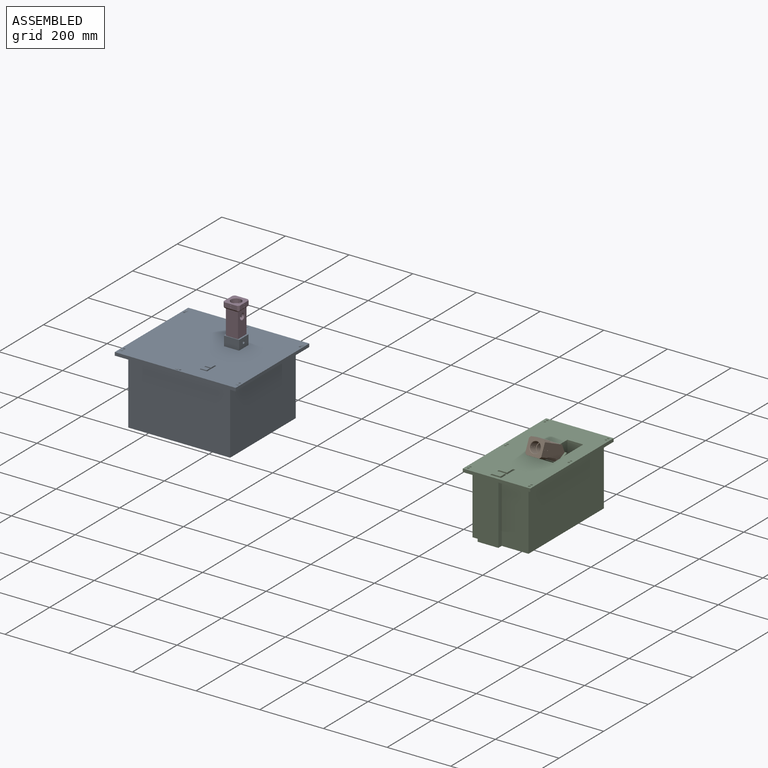
[diagram: assembled view]
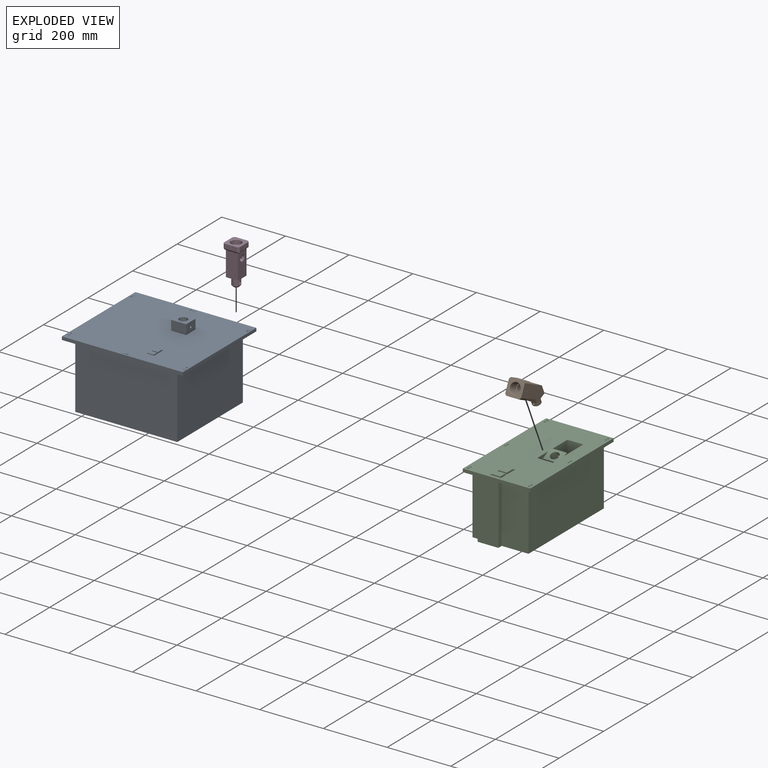
[diagram: exploded view]
GUIDED TOUR — MATED ASSEMBLY (Onshape document d1e8308d5dc208790177424f, AutoMate assembly d1e8308d5dc208790177424f_262afded9ebe59061bbb326d_f564121bc8687f628b500fed_default)

This assembly has 4 components, labeled P0..P3 below (a component is one placed occurrence of a part; the same part can appear more than once), held together by 2 mates. A mate is a constraint between two components; its type names the relative motion it leaves free:
  FASTENED — locks the two components together rigidly (no relative motion).
Axis/direction vectors are unit vectors and 'through' points are millimeter coordinates, both in the assembly's world frame.

MATES
  1. FASTENED "Fastened 2": P3 <-> P0, direction (0.000, 0.000, -1.000) through (-55.70, -83.54, 76.76) mm
  2. FASTENED "Fastened 1": P1 <-> P2, direction (0.000, 0.407, -0.914) through (798.81, 124.88, -117.22) mm

ASSEMBLY ORDER
  1. P2 — the base component [order verified]
  2. P1 [order verified]
  3. P0 [order verified]
  4. P3 [order verified]
(P1, P3 verified with a relaxed clearance tolerance: the source model stores slight part interference there.)
Order-tag legend:
  [order verified] — this step's position reverses a verified removal order: the component was checked to insert without passing through the ones already placed.

Of the 4 components, 2 carry the full construction recipe — the FeatureScript program that regenerates the part's solid from scratch; the rest are supplied as boundary geometry only.
Each toured component is shown spotlighted twice — in the assembled view, then in the exploded view, where a leader line traces a displaced component back to its assembled socket (saturated green if recipe-attached, orange if geometry-only; every other component desaturated gray) — followed by its recipe or geometry summary and the mates that hold it.
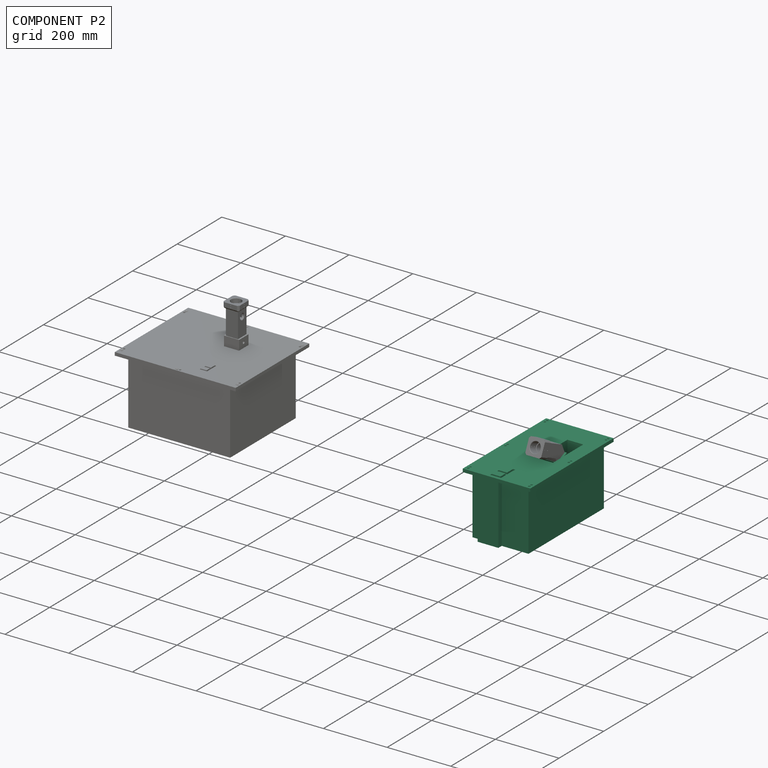
[diagram: component P2 — assembled]
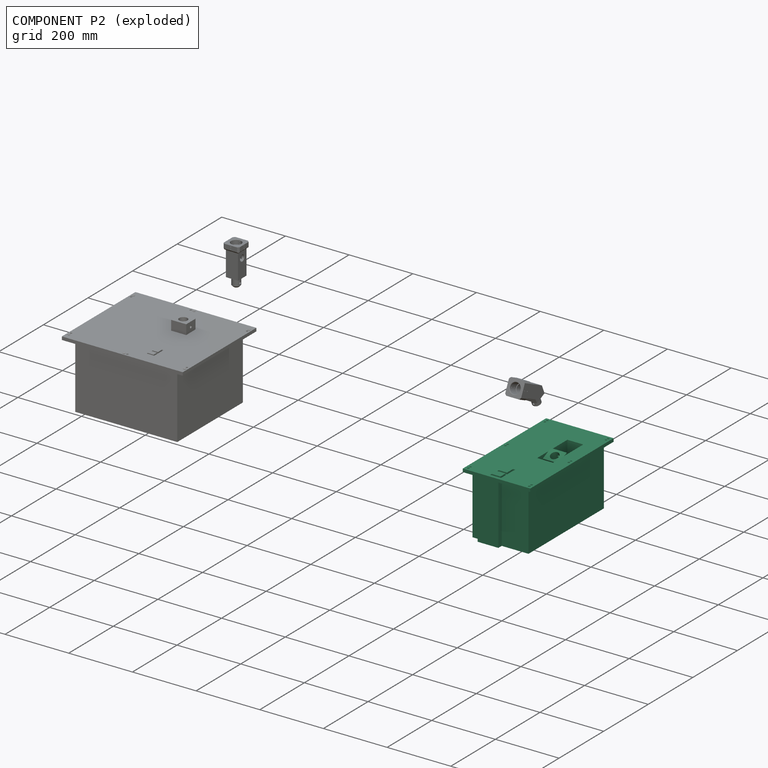
[diagram: component P2 — exploded]
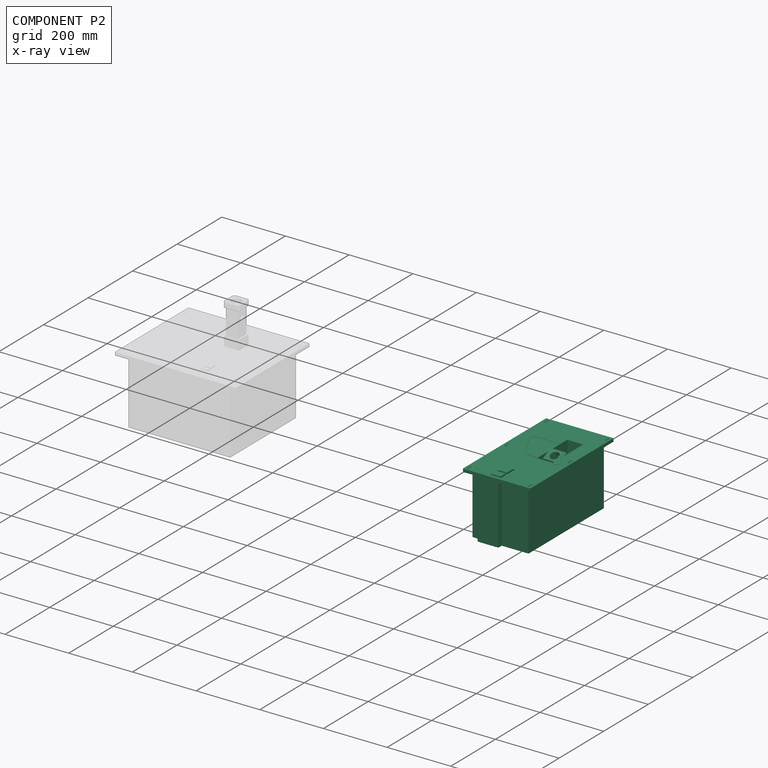
[diagram: component P2 — x-ray view]
COMPONENT P2 — recipe-attached (CADFS 00451113, mesh-verified: the recipe's output STEP matches this component's geometry to below the mesh-comparison resolution (tessellation chordal tolerance ~0.712 mm)).
Held by: FASTENED mate "Fastened 1" to P1.
Construction recipe (FeatureScript — the CAD program that rebuilds this solid; sketch coordinates are in the units given by the * unit suffixes, e.g. mm):

FeatureScript 1803;
import(path : "onshape/std/geometry.fs", version : "1803.0");
import(path : "onshape/std/common.fs", version : "1803.0");
const mm = millimeter;
const VERTEX = EntityType.VERTEX;
const EDGE = EntityType.EDGE;
const FACE = EntityType.FACE;
const BODY = EntityType.BODY;
function v(x, y){return vector(x, y);}
function OD(order){return orderDisambiguation(order);}
function OSD(set){return originalSetDisambiguation(set);}
function TD(topology){return topologyDisambiguation(topology);}
function TDD(query){return trueDependencyDisambiguation(query);}
function sQuery(a, b, c) {return sketchEntityQuery(a, b, c);}

annotation { "Feature Type Name" : "Feature", "Feature Type Description" : "" }
export const myFeature = defineFeature(function(context is Context, id is Id, definition is map)
    precondition{}
    {
        {
            var Q0;
            Q0=qCreatedBy(makeId("Top.planeOp"),FACE);
            var sketch = newSketch(context, id + "F0", { "sketchPlane" : qUnion([Q0])});
            skLineSegment(sketch, "E0.bottom", {"start": v(187, -106) * mm, "end": v(-187, -106) * mm});
            skLineSegment(sketch, "E0.top", {"start": v(187, 106) * mm, "end": v(-187, 106) * mm});
            skLineSegment(sketch, "E0.left", {"start": v(187, -106) * mm, "end": v(187, 106) * mm});
            skLineSegment(sketch, "E0.right", {"start": v(-187, -106) * mm, "end": v(-187, 106) * mm});
            skPoint(sketch, "E0.middle", {"position": v(0, 0) * mm});
            skSolve(sketch);
        }
        {
            var Q0;
            Q0=qSketchRegion(id+"F0",true);
            extrude(context, id + "F1", {"entities" : qUnion([Q0]), "depth" : 10 * mm});
        }
        {
            var Q0;
            Q0=makeQuery(id+"F1.opExtrude","CAP_FACE",FACE,{"disambiguationData":[OSD([sQuery(id+"F0.wireOp",EDGE,"E0.bottom"),sQuery(id+"F0.wireOp",EDGE,"E0.top"),sQuery(id+"F0.wireOp",EDGE,"E0.left"),sQuery(id+"F0.wireOp",EDGE,"E0.right")])],"isStart":true});
            var sketch = newSketch(context, id + "F2", { "sketchPlane" : qUnion([Q0])});
            skLineSegment(sketch, "E1.bottom", {"start": v(169, -88) * mm, "end": v(-169, -88) * mm});
            skLineSegment(sketch, "E1.top", {"start": v(169, 88) * mm, "end": v(-169, 88) * mm});
            skLineSegment(sketch, "E1.left", {"start": v(169, -88) * mm, "end": v(169, 88) * mm});
            skLineSegment(sketch, "E1.right", {"start": v(-169, -88) * mm, "end": v(-169, 88) * mm});
            skPoint(sketch, "E1.middle", {"position": v(0, 0) * mm});
            skLineSegment(sketch, "E2", {"start": v(-169, -61.3) * mm, "end": v(-184, -61.3) * mm});
            skLineSegment(sketch, "E3", {"start": v(-184, -61.3) * mm, "end": v(-184, 3.7) * mm});
            skLineSegment(sketch, "E4", {"start": v(-184, 3.7) * mm, "end": v(-169, 3.7) * mm});
            skSolve(sketch);
        }
        {
            var Q0;
            Q0=qSketchRegion(id+"F2",true);
            extrude(context, id + "F3", {"entities" : qUnion([Q0]), "operationType" : NewBodyOperationType.ADD, "depth" : 187 * mm});
        }
        {
            var Q0;
            Q0=makeQuery(id+"F1.opExtrude","CAP_FACE",FACE,{"disambiguationData":[OSD([sQuery(id+"F0.wireOp",EDGE,"E0.bottom"),sQuery(id+"F0.wireOp",EDGE,"E0.top"),sQuery(id+"F0.wireOp",EDGE,"E0.left"),sQuery(id+"F0.wireOp",EDGE,"E0.right")])],"isStart":false});
            var sketch = newSketch(context, id + "F4", { "sketchPlane" : qUnion([Q0])});
            skLineSegment(sketch, "E5.bottom", {"start": v(110.87, -63.9) * mm, "end": v(-24.87, -63.9) * mm});
            skLineSegment(sketch, "E5.top", {"start": v(110.87, -13.9) * mm, "end": v(-24.87, -13.9) * mm});
            skLineSegment(sketch, "E5.left", {"start": v(110.87, -63.9) * mm, "end": v(110.87, -13.9) * mm});
            skLineSegment(sketch, "E5.right", {"start": v(-24.87, -63.9) * mm, "end": v(-24.87, -13.9) * mm});
            skPoint(sketch, "E5.middle", {"position": v(43, -38.9) * mm});
            skSolve(sketch);
        }
        {
            var Q0;
            Q0=qSketchRegion(id+"F4",true);
            extrude(context, id + "F5", {"entities" : qUnion([Q0]), "operationType" : NewBodyOperationType.REMOVE, "oppositeDirection" : true, "depth" : 50 * mm});
        }
        {
            var Q0;
            {var subQ0=sQuery(id+"F0.wireOp",EDGE,"E0.left");var subQ1=sQuery(id+"F0.wireOp",EDGE,"E0.top");var subQ2=sQuery(id+"F0.wireOp",EDGE,"E0.right");var subQ3=sQuery(id+"F0.wireOp",EDGE,"E0.bottom");Q0=makeQuery(id+"F5.boolean.opBoolean","SPLIT",FACE,{"disambiguationData":[TD([makeQuery(id+"F1.opExtrude","SWEPT_FACE",FACE,{"disambiguationData":[OSD([subQ3])]})])],"derivedFrom":makeQuery(id+"F1.opExtrude","CAP_FACE",FACE,{"disambiguationData":[OSD([subQ3,subQ1,subQ0,subQ2])],"isStart":false})});}
            var sketch = newSketch(context, id + "F6", { "sketchPlane" : qUnion([Q0])});
            skPoint(sketch, "E6", {"position": v(-177, 96) * mm});
            skPoint(sketch, "E7", {"position": v(-167, 96) * mm});
            skPoint(sketch, "E8", {"position": v(-10, 96) * mm});
            skPoint(sketch, "E9", {"position": v(0, 96) * mm});
            skPoint(sketch, "E10", {"position": v(167, 96) * mm});
            skPoint(sketch, "E11", {"position": v(177, 96) * mm});
            skPoint(sketch, "E12.MirrorP", {"position": v(177, -96) * mm});
            skPoint(sketch, "E13.MirrorP", {"position": v(167, -96) * mm});
            skPoint(sketch, "E14.MirrorP", {"position": v(-167, -96) * mm});
            skPoint(sketch, "E15.MirrorP", {"position": v(-177, -96) * mm});
            skPoint(sketch, "E16", {"position": v(0, -96) * mm});
            skPoint(sketch, "E17", {"position": v(10, -96) * mm});
            skSolve(sketch);
        }
        {
            var Q0;
            Q0=sQuery(id+"F6.wireOp",VERTEX,"E7");
            var Q1;
            Q1=sQuery(id+"F6.wireOp",VERTEX,"E14.MirrorP");
            var Q2;
            Q2=sQuery(id+"F6.wireOp",VERTEX,"E13.MirrorP");
            var Q3;
            Q3=sQuery(id+"F6.wireOp",VERTEX,"E10");
            var Q4;
            Q4=sQuery(id+"F6.wireOp",VERTEX,"E8");
            var Q5;
            Q5=sQuery(id+"F6.wireOp",VERTEX,"E17");
            var Q6;
            Q6=makeQuery(id+"F1.opExtrude","SWEPT_BODY",BODY,{"disambiguationData":[OSD([sQuery(id+"F0.wireOp",EDGE,"E0.bottom"),sQuery(id+"F0.wireOp",EDGE,"E0.top"),sQuery(id+"F0.wireOp",EDGE,"E0.left"),sQuery(id+"F0.wireOp",EDGE,"E0.right")])]});
            hole(context, id + "F7", {"style" : HoleStyle.SIMPLE, "endStyle" : HoleEndStyle.BLIND, "holeDiameter" : 6 * mm, "holeDepth" : 10 * mm, "tappedDepth" : 12 * mm, "tapClearance" : 3, "locations" : qUnion([Q0, Q1, Q2, Q3, Q4, Q5]), "scope" : qUnion([Q6])});
        }
        {
            var Q0;
            Q0=sQuery(id+"F6.wireOp",VERTEX,"E6");
            var Q1;
            Q1=sQuery(id+"F6.wireOp",VERTEX,"E15.MirrorP");
            var Q2;
            Q2=sQuery(id+"F6.wireOp",VERTEX,"E16");
            var Q3;
            Q3=sQuery(id+"F6.wireOp",VERTEX,"E9");
            var Q4;
            Q4=sQuery(id+"F6.wireOp",VERTEX,"E11");
            var Q5;
            Q5=sQuery(id+"F6.wireOp",VERTEX,"E12.MirrorP");
            var Q6;
            Q6=makeQuery(id+"F1.opExtrude","SWEPT_BODY",BODY,{"disambiguationData":[OSD([sQuery(id+"F0.wireOp",EDGE,"E0.bottom"),sQuery(id+"F0.wireOp",EDGE,"E0.top"),sQuery(id+"F0.wireOp",EDGE,"E0.left"),sQuery(id+"F0.wireOp",EDGE,"E0.right")])]});
            hole(context, id + "F8", {"style" : HoleStyle.SIMPLE, "endStyle" : HoleEndStyle.BLIND, "holeDiameter" : 6.5 * mm, "holeDepth" : 10 * mm, "tappedDepth" : 12 * mm, "tapClearance" : 3, "locations" : qUnion([Q0, Q1, Q2, Q3, Q4, Q5]), "scope" : qUnion([Q6])});
        }
        {
            var Q0;
            Q0=makeQuery(id+"F6.imprint","IMPRINT",FACE,{"disambiguationData":[TD([[makeQuery(id+"F6.imprint","IMPRINT",EDGE,{"derivedFrom":makeQuery(id+"F1.opExtrude","CAP_EDGE",EDGE,{"disambiguationData":[OSD([sQuery(id+"F0.wireOp",EDGE,"E0.bottom")])],"isStart":false})}),-1.0]])]});
            var sketch = newSketch(context, id + "F9", { "sketchPlane" : qUnion([Q0])});
            skText(sketch, "E18", { "text": "F", "fontName": "OpenSans-Regular.ttf"});
            const initialGuessF9  = {"E18": [-0.11521, -0.01712, 0, 1, 0.06278]};
            skSetInitialGuess(sketch, initialGuessF9);
            skSolve(sketch);
        }
        {
            var Q0;
            Q0 = qSketchRegion(id + "F9", true);
            extrude(context, id + "F10", {"entities" : qUnion([Q0]), "operationType" : NewBodyOperationType.REMOVE, "oppositeDirection" : true, "depth" : 5 * mm, "offsetDistance" : 25 * mm});
        }
        {
            var Q0;
            Q0=makeQuery(id+"F5.boolean.opBoolean","COPY",FACE,{"derivedFrom":makeQuery(id+"F5.opExtrude","SWEPT_FACE",FACE,{"disambiguationData":[OSD([sQuery(id+"F4.wireOp",EDGE,"E5.top")])]})});
            cPlane(context, id + "F11", {"entities" : qUnion([Q0]), "cplaneType" : CPlaneType.OFFSET, "offset" : 25 * mm, "width" : 150 * mm, "height" : 150 * mm});
        }
        {
            var Q0;
            Q0=qCreatedBy(id+"F11.planeOp",FACE);
            var sketch = newSketch(context, id + "F12", { "sketchPlane" : qUnion([Q0])});
            skLineSegment(sketch, "E19", {"start": v(36.87, 14.95) * mm, "end": v(61.27, -39.87) * mm});
            skLineSegment(sketch, "E20", {"start": v(61.27, -39.87) * mm, "end": v(24.73, -56.13) * mm});
            skLineSegment(sketch, "E21", {"start": v(24.73, -56.13) * mm, "end": v(0.32, -1.32) * mm});
            skLineSegment(sketch, "E22", {"start": v(0.32, -1.32) * mm, "end": v(36.87, 14.95) * mm});
            skPoint(sketch, "E23", {"position": v(43, -48) * mm});
            skLineSegment(sketch, "E24", {"start": v(43, -48) * mm, "end": v(43, 95.44) * mm, "construction": true});
            skSolve(sketch);
        }
        {
            var Q0;
            Q0 = qSketchRegion(id + "F12", true);
            extrude(context, id + "F13", {"entities" : qUnion([Q0]), "operationType" : NewBodyOperationType.ADD, "depth" : 50 * mm, "offsetDistance" : 25 * mm, "symmetric" : true});
        }
        {
            var Q0;
            Q0=makeQuery(id+"F13.opExtrude","SWEPT_FACE",FACE,{"disambiguationData":[OSD([sQuery(id+"F12.wireOp",EDGE,"E22")])]});
            var sketch = newSketch(context, id + "F14", { "sketchPlane" : qUnion([Q0])});
            skCircle(sketch, "E25", {"center": v(19.76, -38.9) * mm, "radius": 13 * mm});
            skSolve(sketch);
        }
        {
            var Q0;
            Q0 = qSketchRegion(id + "F14", true);
            extrude(context, id + "F15", {"entities" : qUnion([Q0]), "operationType" : NewBodyOperationType.REMOVE, "oppositeDirection" : true, "depth" : 33 * mm, "offsetDistance" : 25 * mm});
        }
        {
            var Q0;
            Q0=makeQuery(id+"F13.opExtrude","SWEPT_FACE",FACE,{"disambiguationData":[OSD([sQuery(id+"F12.wireOp",EDGE,"E19")])]});
            var sketch = newSketch(context, id + "F16", { "sketchPlane" : qUnion([Q0])});
            skCircle(sketch, "E26", {"center": v(-38.9, -16.34) * mm, "radius": 4.1 * mm});
            skSolve(sketch);
        }
        {
            var Q0;
            Q0 = qSketchRegion(id + "F16", true);
            extrude(context, id + "F17", {"entities" : qUnion([Q0]), "operationType" : NewBodyOperationType.REMOVE, "oppositeDirection" : true, "depth" : 47 * mm, "offsetDistance" : 25 * mm});
        }
    });
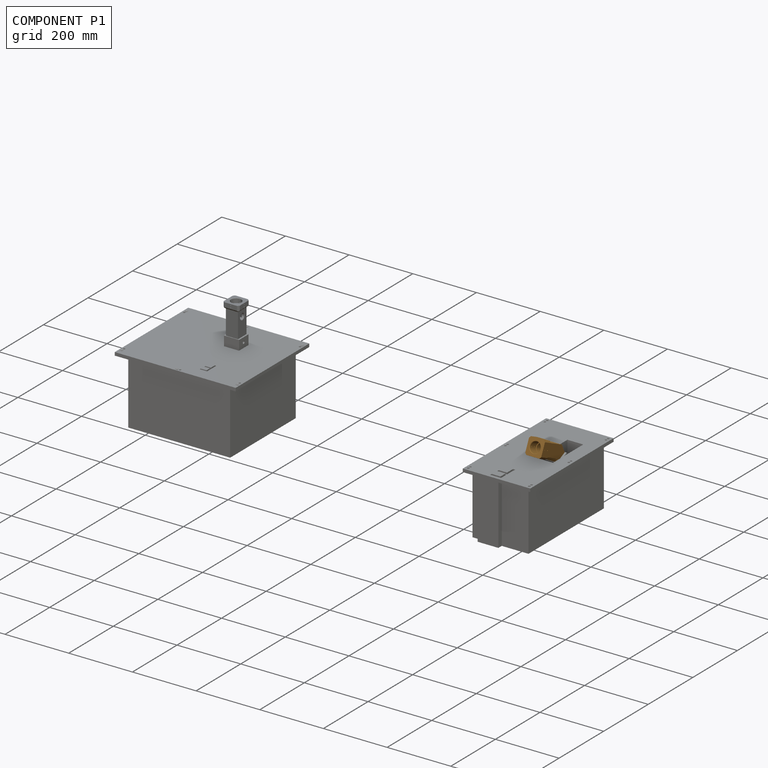
[diagram: component P1 — assembled]
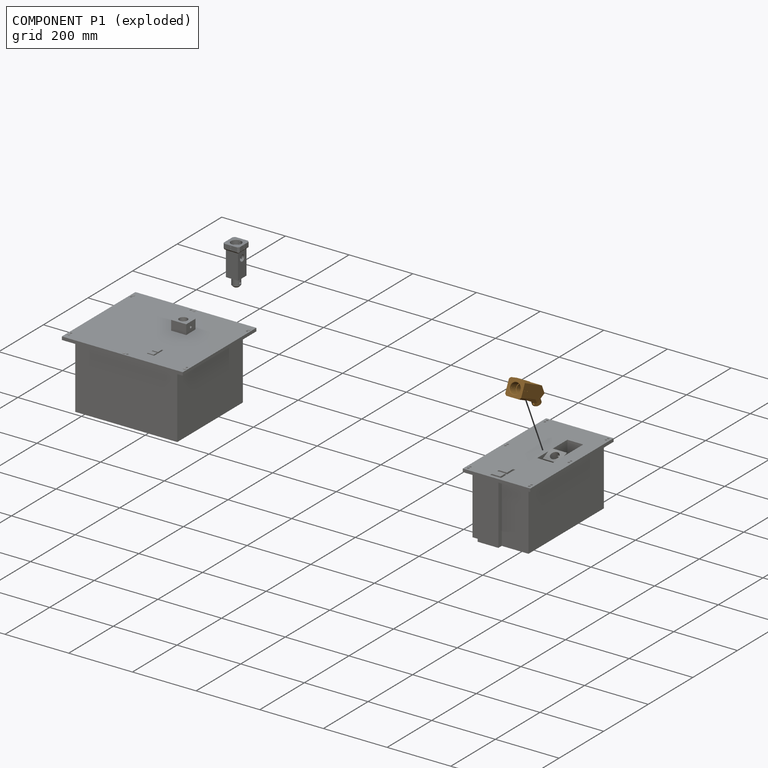
[diagram: component P1 — exploded]
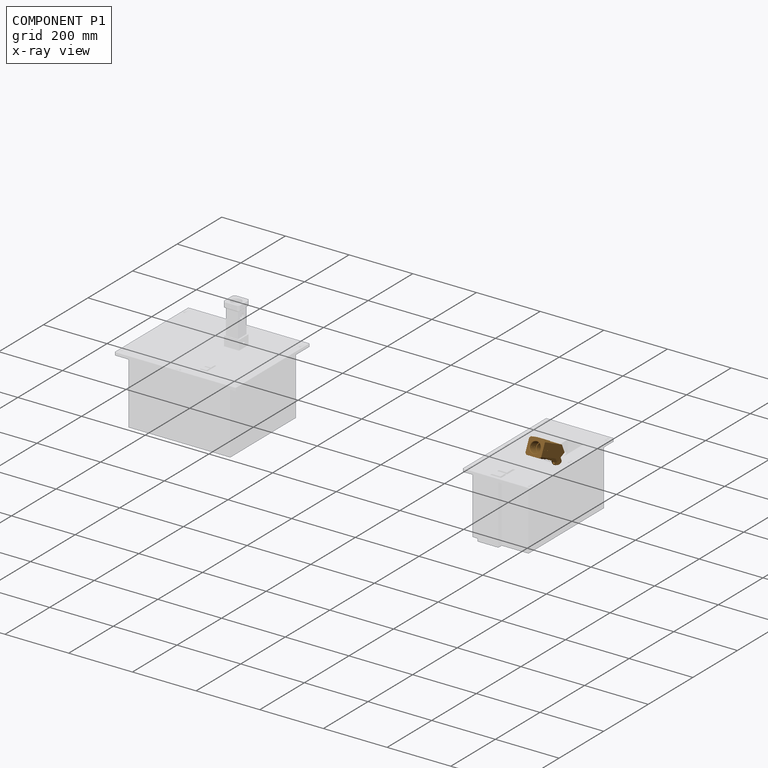
[diagram: component P1 — x-ray view]
COMPONENT P1 — geometry summary (no construction recipe available for this part):
  bounding box: 132.2 x 95.0 x 50.0 mm
  B-rep topology: 1 solid, 38 faces, 200 edges
  volume: 151509 mm^3 (24% of its bounding box)
  symmetry: mirror-symmetric across its x mid-plane
Held by: FASTENED mate "Fastened 1" to P2.
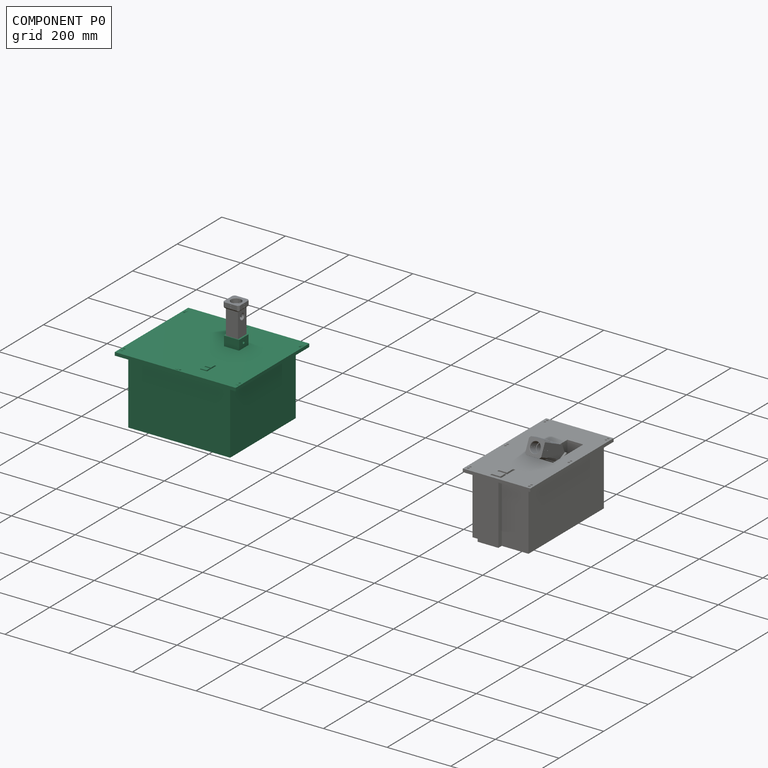
[diagram: component P0 — assembled]
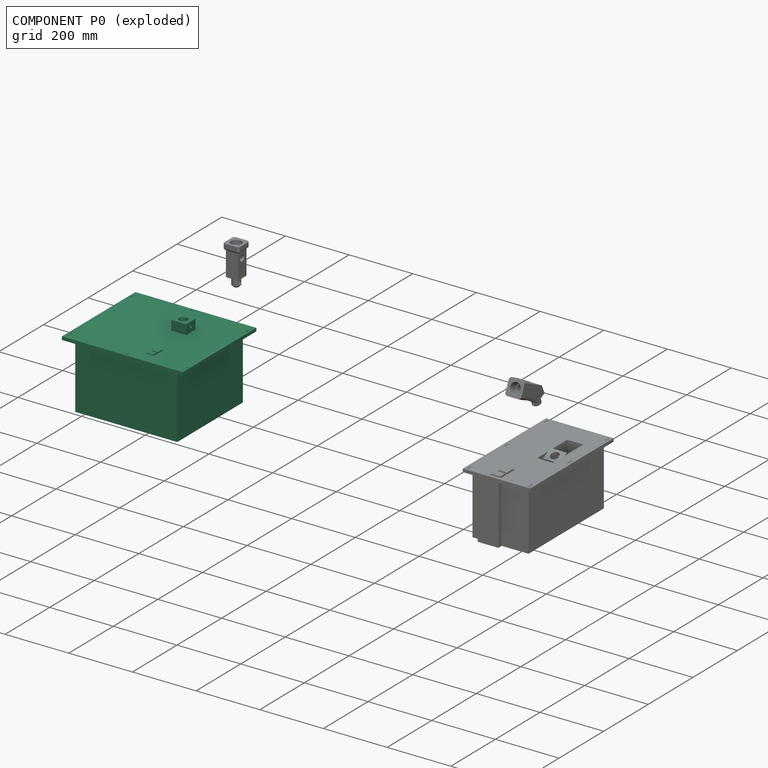
[diagram: component P0 — exploded]
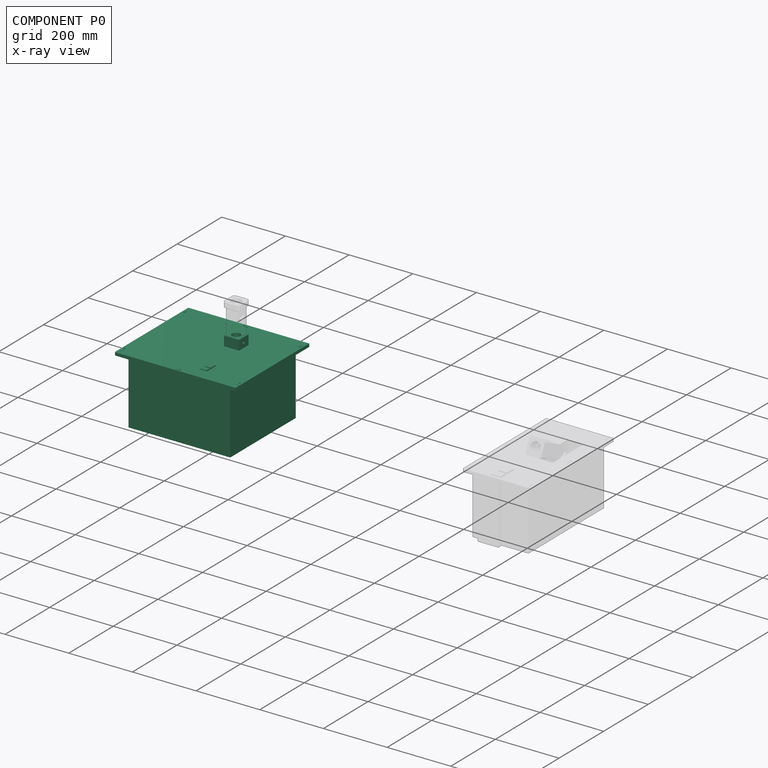
[diagram: component P0 — x-ray view]
COMPONENT P0 — recipe-attached (CADFS 00451111, mesh-verified: the recipe's output STEP matches this component's geometry to below the mesh-comparison resolution (tessellation chordal tolerance ~0.839 mm)).
Held by: FASTENED mate "Fastened 2" to P3.
Construction recipe (FeatureScript — the CAD program that rebuilds this solid; sketch coordinates are in the units given by the * unit suffixes, e.g. mm):

FeatureScript 1803;
import(path : "onshape/std/geometry.fs", version : "1803.0");
import(path : "onshape/std/common.fs", version : "1803.0");
const mm = millimeter;
const VERTEX = EntityType.VERTEX;
const EDGE = EntityType.EDGE;
const FACE = EntityType.FACE;
const BODY = EntityType.BODY;
function v(x, y){return vector(x, y);}
function OD(order){return orderDisambiguation(order);}
function OSD(set){return originalSetDisambiguation(set);}
function TD(topology){return topologyDisambiguation(topology);}
function TDD(query){return trueDependencyDisambiguation(query);}
function sQuery(a, b, c) {return sketchEntityQuery(a, b, c);}

annotation { "Feature Type Name" : "Feature", "Feature Type Description" : "" }
export const myFeature = defineFeature(function(context is Context, id is Id, definition is map)
    precondition{}
    {
        {
            var Q0;
            Q0=qCreatedBy(makeId("Top.planeOp"),FACE);
            var sketch = newSketch(context, id + "F0", { "sketchPlane" : qUnion([Q0])});
            skLineSegment(sketch, "E0.bottom", {"start": v(190, -165) * mm, "end": v(-190, -165) * mm});
            skLineSegment(sketch, "E0.top", {"start": v(190, 165) * mm, "end": v(-190, 165) * mm});
            skLineSegment(sketch, "E0.left", {"start": v(190, -165) * mm, "end": v(190, 165) * mm});
            skLineSegment(sketch, "E0.right", {"start": v(-190, -165) * mm, "end": v(-190, 165) * mm});
            skPoint(sketch, "E0.middle", {"position": v(0, 0) * mm});
            skSolve(sketch);
        }
        {
            var Q0;
            Q0 = qSketchRegion(id + "F0", true);
            extrude(context, id + "F1", {"entities" : qUnion([Q0]), "depth" : 10 * mm});
        }
        {
            var Q0;
            Q0=makeQuery(id+"F1.opExtrude","CAP_FACE",FACE,{"disambiguationData":[OSD([sQuery(id+"F0.wireOp",EDGE,"E0.bottom"),sQuery(id+"F0.wireOp",EDGE,"E0.top"),sQuery(id+"F0.wireOp",EDGE,"E0.left"),sQuery(id+"F0.wireOp",EDGE,"E0.right")])],"isStart":true});
            var sketch = newSketch(context, id + "F2", { "sketchPlane" : qUnion([Q0])});
            skLineSegment(sketch, "E1.bottom", {"start": v(160.15, -147.15) * mm, "end": v(-160.15, -147.15) * mm});
            skLineSegment(sketch, "E1.top", {"start": v(160.15, 147.15) * mm, "end": v(-160.15, 147.15) * mm});
            skLineSegment(sketch, "E1.left", {"start": v(160.15, -147.15) * mm, "end": v(160.15, 147.15) * mm});
            skLineSegment(sketch, "E1.right", {"start": v(-160.15, -147.15) * mm, "end": v(-160.15, 147.15) * mm});
            skPoint(sketch, "E1.middle", {"position": v(0, 0) * mm});
            skLineSegment(sketch, "E2", {"start": v(160.15, -113.65) * mm, "end": v(175.15, -113.65) * mm});
            skLineSegment(sketch, "E3", {"start": v(175.15, -113.65) * mm, "end": v(175.15, -48.65) * mm});
            skLineSegment(sketch, "E4", {"start": v(175.15, -48.65) * mm, "end": v(160.15, -48.65) * mm});
            skSolve(sketch);
        }
        {
            var Q0;
            Q0 = qSketchRegion(id + "F2", true);
            extrude(context, id + "F3", {"entities" : qUnion([Q0]), "operationType" : NewBodyOperationType.ADD, "depth" : 203 * mm});
        }
        {
            var Q0;
            {var subQ0=sQuery(id+"F0.wireOp",EDGE,"E0.left");var subQ1=sQuery(id+"F0.wireOp",EDGE,"E0.top");var subQ2=sQuery(id+"F0.wireOp",EDGE,"E0.right");var subQ3=sQuery(id+"F0.wireOp",EDGE,"E0.bottom");Q0=makeQuery(id+"F8.boolean.opBoolean","SPLIT",FACE,{"disambiguationData":[TD([makeQuery(id+"F1.opExtrude","SWEPT_FACE",FACE,{"disambiguationData":[OSD([subQ3])]})])],"derivedFrom":makeQuery(id+"F1.opExtrude","CAP_FACE",FACE,{"disambiguationData":[OSD([subQ3,subQ1,subQ0,subQ2])],"isStart":false})});}
            var sketch = newSketch(context, id + "F4", { "sketchPlane" : qUnion([Q0])});
            skPoint(sketch, "E5", {"position": v(0, 157) * mm});
            skPoint(sketch, "E6", {"position": v(0, -157) * mm});
            skPoint(sketch, "E7", {"position": v(-182, 145) * mm});
            skPoint(sketch, "E8", {"position": v(-182, -145) * mm});
            skPoint(sketch, "E9", {"position": v(-182, 135) * mm});
            skPoint(sketch, "E10", {"position": v(-182, -135) * mm});
            skPoint(sketch, "E11.MirrorP", {"position": v(182, 145) * mm});
            skPoint(sketch, "E12.MirrorP", {"position": v(182, -145) * mm});
            skPoint(sketch, "E13.MirrorP", {"position": v(182, 135) * mm});
            skPoint(sketch, "E14.MirrorP", {"position": v(182, -135) * mm});
            skPoint(sketch, "E15", {"position": v(-10, 157) * mm});
            skPoint(sketch, "E16", {"position": v(10, -157) * mm});
            skPoint(sketch, "E17.middle", {"position": v(0, 0) * mm});
            skPoint(sketch, "E18", {"position": v(-43.5, -46.5) * mm});
            skSolve(sketch);
        }
        {
            var Q0;
            Q0=sQuery(id+"F4.wireOp",VERTEX,"E9");
            var Q1;
            Q1=sQuery(id+"F4.wireOp",VERTEX,"E10");
            var Q2;
            Q2=sQuery(id+"F4.wireOp",VERTEX,"E13.MirrorP");
            var Q3;
            Q3=sQuery(id+"F4.wireOp",VERTEX,"E14.MirrorP");
            var Q4;
            Q4=sQuery(id+"F4.wireOp",VERTEX,"E16");
            var Q5;
            Q5=sQuery(id+"F4.wireOp",VERTEX,"E15");
            var Q6;
            Q6=makeQuery(id+"F1.opExtrude","SWEPT_BODY",BODY,{"disambiguationData":[OSD([sQuery(id+"F0.wireOp",EDGE,"E0.bottom"),sQuery(id+"F0.wireOp",EDGE,"E0.top"),sQuery(id+"F0.wireOp",EDGE,"E0.left"),sQuery(id+"F0.wireOp",EDGE,"E0.right")])]});
            hole(context, id + "F5", {"style" : HoleStyle.SIMPLE, "endStyle" : HoleEndStyle.BLIND, "holeDiameter" : 6 * mm, "holeDepth" : 10 * mm, "tappedDepth" : 12 * mm, "tapClearance" : 3, "locations" : qUnion([Q0, Q1, Q2, Q3, Q4, Q5]), "scope" : qUnion([Q6])});
        }
        {
            var Q0;
            Q0=sQuery(id+"F4.wireOp",VERTEX,"E7");
            var Q1;
            Q1=sQuery(id+"F4.wireOp",VERTEX,"E11.MirrorP");
            var Q2;
            Q2=sQuery(id+"F4.wireOp",VERTEX,"E8");
            var Q3;
            Q3=sQuery(id+"F4.wireOp",VERTEX,"E12.MirrorP");
            var Q4;
            Q4=sQuery(id+"F4.wireOp",VERTEX,"E6");
            var Q5;
            Q5=sQuery(id+"F4.wireOp",VERTEX,"E5");
            var Q6;
            Q6=makeQuery(id+"F1.opExtrude","SWEPT_BODY",BODY,{"disambiguationData":[OSD([sQuery(id+"F0.wireOp",EDGE,"E0.bottom"),sQuery(id+"F0.wireOp",EDGE,"E0.top"),sQuery(id+"F0.wireOp",EDGE,"E0.left"),sQuery(id+"F0.wireOp",EDGE,"E0.right")])]});
            hole(context, id + "F6", {"style" : HoleStyle.C_SINK, "endStyle" : HoleEndStyle.BLIND, "holeDiameter" : 5.5 * mm, "cSinkDiameter" : 10 * mm, "cSinkAngle" : 90 * degree, "holeDepth" : 10 * mm, "tappedDepth" : 12 * mm, "tapClearance" : 3, "locations" : qUnion([Q0, Q1, Q2, Q3, Q4, Q5]), "scope" : qUnion([Q6])});
        }
        {
            var Q0;
            Q0=makeQuery(id+"F1.opExtrude","CAP_FACE",FACE,{"disambiguationData":[OSD([sQuery(id+"F0.wireOp",EDGE,"E0.bottom"),sQuery(id+"F0.wireOp",EDGE,"E0.top"),sQuery(id+"F0.wireOp",EDGE,"E0.left"),sQuery(id+"F0.wireOp",EDGE,"E0.right")])],"isStart":false});
            var sketch = newSketch(context, id + "F7", { "sketchPlane" : qUnion([Q0])});
            skLineSegment(sketch, "E19.bottom", {"start": v(-19.75, -67.5) * mm, "end": v(-67.25, -67.5) * mm});
            skLineSegment(sketch, "E19.top", {"start": v(-19.75, -25.5) * mm, "end": v(-67.25, -25.5) * mm});
            skLineSegment(sketch, "E19.left", {"start": v(-19.75, -67.5) * mm, "end": v(-19.75, -25.5) * mm});
            skLineSegment(sketch, "E19.right", {"start": v(-67.25, -67.5) * mm, "end": v(-67.25, -25.5) * mm});
            skPoint(sketch, "E19.middle", {"position": v(-43.5, -46.5) * mm});
            skCircle(sketch, "E20", {"center": v(-43.5, -46.5) * mm, "radius": 13 * mm});
            skSolve(sketch);
        }
        {
            var Q0;
            Q0 = qSketchRegion(id + "F7", true);
            extrude(context, id + "F8", {"entities" : qUnion([Q0]), "operationType" : NewBodyOperationType.ADD, "depth" : 30.5 * mm});
        }
        {
            var Q0;
            {var subQ0=sQuery(id+"F0.wireOp",EDGE,"E0.left");var subQ1=sQuery(id+"F0.wireOp",EDGE,"E0.top");var subQ2=sQuery(id+"F0.wireOp",EDGE,"E0.right");var subQ3=sQuery(id+"F0.wireOp",EDGE,"E0.bottom");Q0=makeQuery(id+"F8.boolean.opBoolean","SPLIT",FACE,{"disambiguationData":[TD([makeQuery(id+"F1.opExtrude","SWEPT_FACE",FACE,{"disambiguationData":[OSD([subQ3])]})])],"derivedFrom":makeQuery(id+"F1.opExtrude","CAP_FACE",FACE,{"disambiguationData":[OSD([subQ3,subQ1,subQ0,subQ2])],"isStart":false})});}
            var sketch = newSketch(context, id + "F9", { "sketchPlane" : qUnion([Q0])});
            skText(sketch, "E21", { "text": "F", "fontName": "OpenSans-Regular.ttf"});
            const initialGuessF9  = {"E21": [-0.07771, 0.0835, 1, 0, 0.04155]};
            skSetInitialGuess(sketch, initialGuessF9);
            skSolve(sketch);
        }
        {
            var Q0;
            Q0 = qSketchRegion(id + "F9", true);
            extrude(context, id + "F10", {"entities" : qUnion([Q0]), "operationType" : NewBodyOperationType.REMOVE, "oppositeDirection" : true, "depth" : 5 * mm, "offsetDistance" : 25 * mm});
        }
        {
            var Q0;
            Q0=makeQuery(id+"F8.opExtrude","SWEPT_FACE",FACE,{"disambiguationData":[OSD([sQuery(id+"F7.wireOp",EDGE,"E19.right")])]});
            var sketch = newSketch(context, id + "F11", { "sketchPlane" : qUnion([Q0])});
            skCircle(sketch, "E22", {"center": v(46.5, 25.5) * mm, "radius": 4.1 * mm});
            skSolve(sketch);
        }
        {
            var Q0;
            Q0 = qSketchRegion(id + "F11", true);
            extrude(context, id + "F12", {"entities" : qUnion([Q0]), "operationType" : NewBodyOperationType.REMOVE, "oppositeDirection" : true, "depth" : 62.5 * mm, "offsetDistance" : 25 * mm});
        }
        {
            var Q0;
            Q0=makeQuery(id+"F8.boolean.opBoolean","SPLIT",FACE,{"disambiguationData":[TD([makeQuery(id+"F8.opExtrude","SWEPT_FACE",FACE,{"disambiguationData":[OSD([sQuery(id+"F7.wireOp",EDGE,"E20")])]})])],"derivedFrom":makeQuery(id+"F1.opExtrude","CAP_FACE",FACE,{"disambiguationData":[OSD([sQuery(id+"F0.wireOp",EDGE,"E0.bottom"),sQuery(id+"F0.wireOp",EDGE,"E0.top"),sQuery(id+"F0.wireOp",EDGE,"E0.left"),sQuery(id+"F0.wireOp",EDGE,"E0.right")])],"isStart":false})});
            extrude(context, id + "F13", {"entities" : qUnion([Q0]), "operationType" : NewBodyOperationType.REMOVE, "oppositeDirection" : true, "depth" : 10 * mm, "offsetDistance" : 25 * mm});
        }
    });
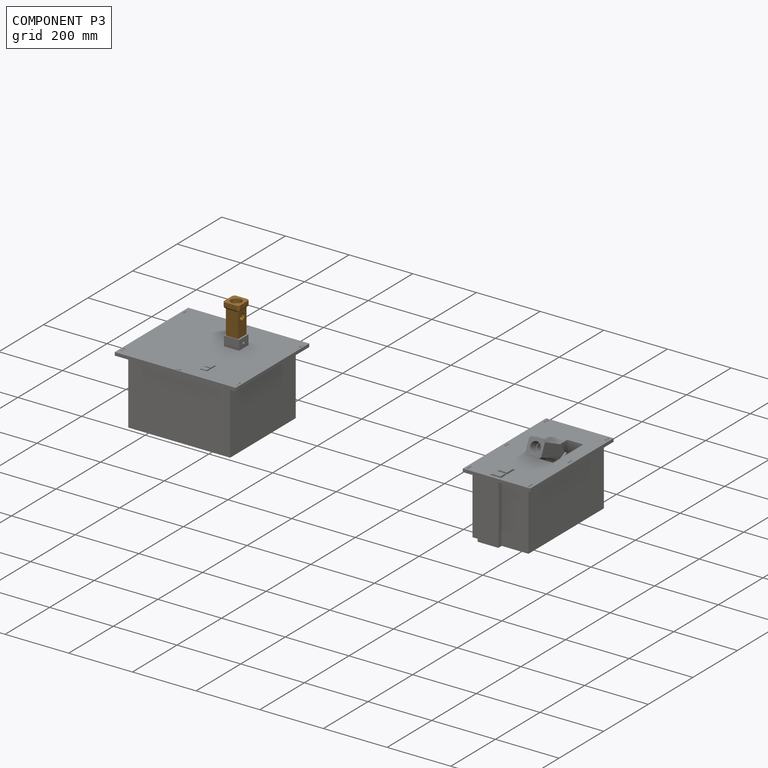
[diagram: component P3 — assembled]
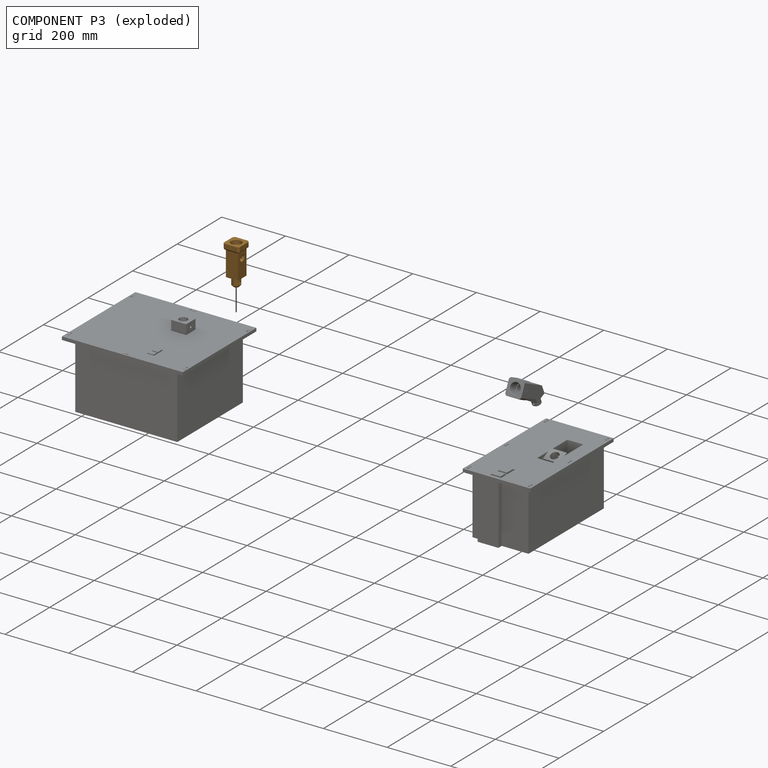
[diagram: component P3 — exploded]
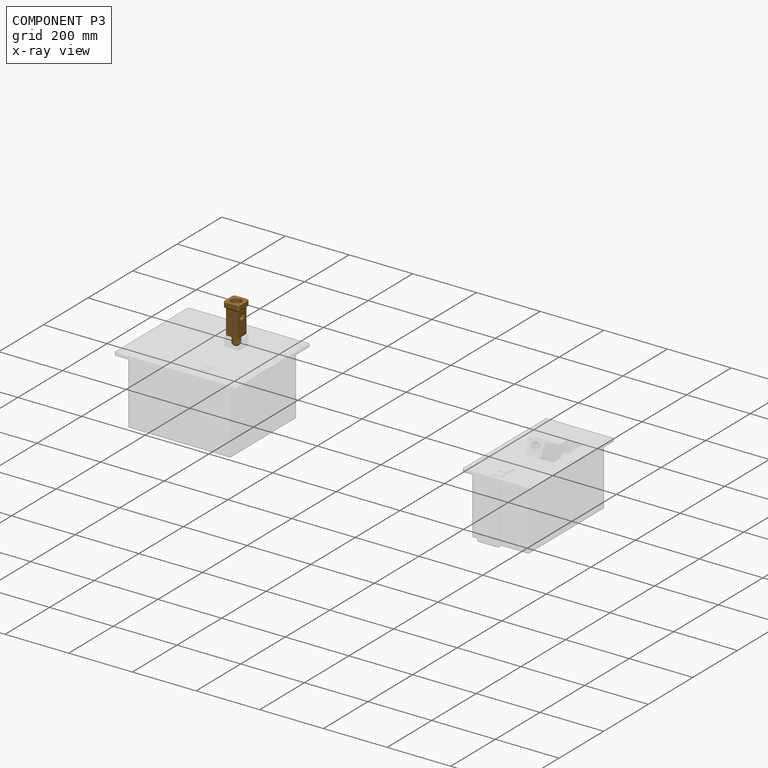
[diagram: component P3 — x-ray view]
COMPONENT P3 — geometry summary (no construction recipe available for this part):
  bounding box: 125.0 x 50.0 x 50.0 mm
  B-rep topology: 1 solid, 39 faces, 222 edges
  volume: 133094 mm^3 (43% of its bounding box)
  symmetry: 2-fold rotationally symmetric about the z axis; mirror-symmetric across its x mid-plane, y mid-plane
Held by: FASTENED mate "Fastened 2" to P0.
PROVENANCE & LICENSES
Assembly (occurrences, transforms, mates, per-part STEP geometry): AutoMate dataset, Zenodo record 7776208, CC0.
Construction recipes: CADFS (HuggingFace VladPyatov/CADFS, CC-BY-4.0, layered over the ABC dataset), FeatureScript reconstruction programs keyed by ABC model id.
Join: ABC meta listings map ABC model id -> Onshape documentId; within a shared document, parts are matched by geometric signature (bounding-box dims + volume at 0.1% relative tolerance, exact B-rep face/solid counts).
Verification: 2 of this assembly's 4 components carry a recipe attachment, and every attachment is mesh-verified: the CADFS STEP and the AutoMate member STEP were compared as meshes in their shared local frame (symmetric sampled-point-to-mesh distance); worst across the 2 attachments: below the mesh-comparison resolution (tessellation chordal tolerance ~0.839 mm) on a 559 mm part.
Renders: orthographic iso camera (az 35 / el 25); the floor grid conveys scale (grid pitch printed in each image; no ruler). In the exploded view each component is displaced by its stored offset vector: the offsets alone carry the explosion direction (mate normal/axis signs are not orientation cues and do not encode it), and separation distances are assigned per mate-chain, not proportionally to assembly-order depth.
